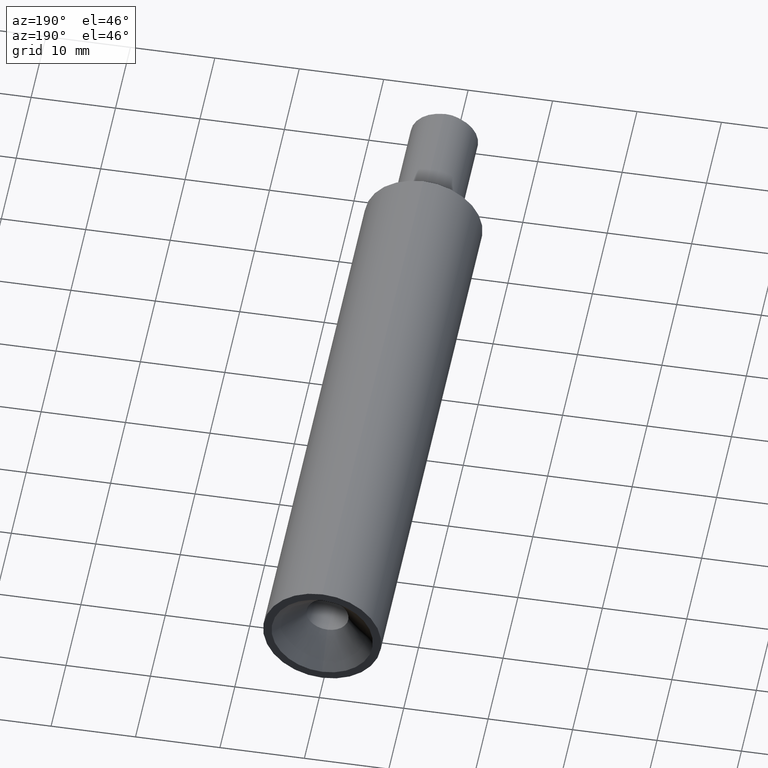
[diagram: clean part render]
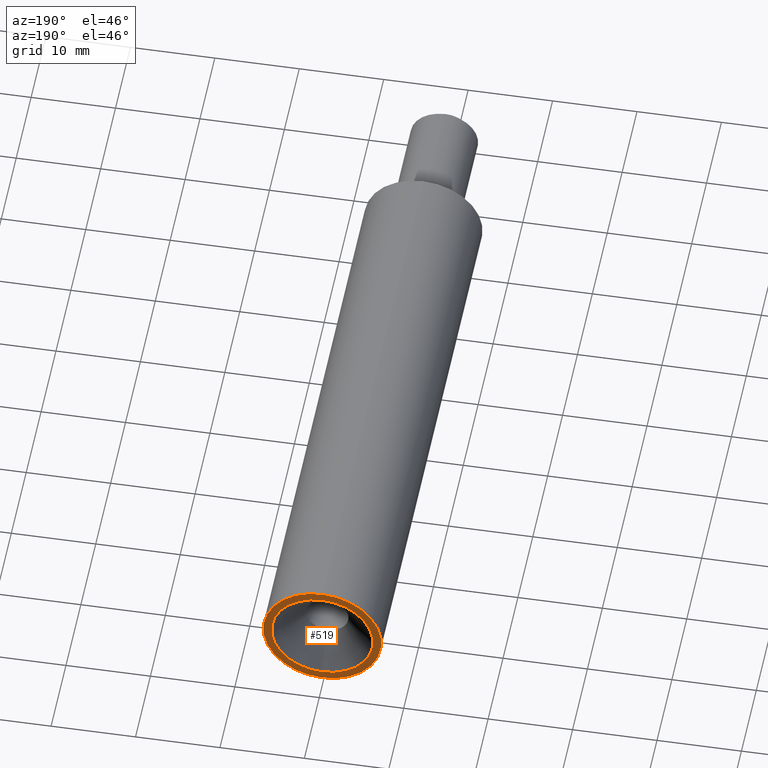
[diagram: same view with one face highlighted and labeled with its STEP entity id]
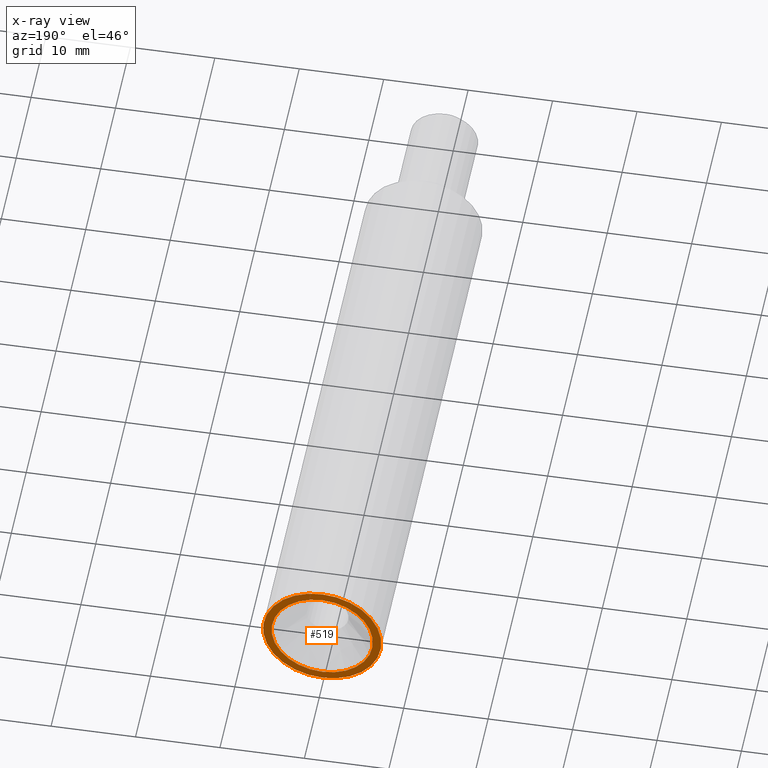
[diagram: x-ray of the same camera — body ghosted, the highlighted face saturated]
A machine part, auxiliary view. The second image highlights one B-rep face of the part: STEP entity #519.
The next image is the same camera in x-ray: the body ghosted, the highlighted face saturated — about 0% of this face is hidden behind the body in this view.
In plain terms, the highlighted planar face has unit normal (0, 1, 0).
Its self-contained STEP definition (entity closure, byte-faithful):
#1 = DIRECTION ( 'NONE',  ( -0.0000000000000000000, 1.000000000000000000, -0.0000000000000000000 ) ) ;
#5 = CIRCLE ( 'NONE', #180, 7.000000000000000000 ) ;
#38 = CIRCLE ( 'NONE', #540, 6.000000000000000000 ) ;
#50 = DIRECTION ( 'NONE',  ( 0.0000000000000000000, 1.000000000000000000, 0.0000000000000000000 ) ) ;
#67 = EDGE_LOOP ( 'NONE', ( #695, #600 ) ) ;
#77 = CARTESIAN_POINT ( 'NONE',  ( 0.0000000000000000000, 68.00000000000000000, 0.0000000000000000000 ) ) ;
#80 = CARTESIAN_POINT ( 'NONE',  ( 0.0000000000000000000, 68.00000000000000000, -7.000000000000000000 ) ) ;
#81 = ORIENTED_EDGE ( 'NONE', *, *, #651, .F. ) ;
#83 = CARTESIAN_POINT ( 'NONE',  ( 0.0000000000000000000, 68.00000000000000000, 0.0000000000000000000 ) ) ;
#85 = DIRECTION ( 'NONE',  ( -0.0000000000000000000, 1.000000000000000000, -0.0000000000000000000 ) ) ;
#94 = CARTESIAN_POINT ( 'NONE',  ( 7.347880794884119700E-016, 68.00000000000000000, -6.000000000000000000 ) ) ;
#123 = DIRECTION ( 'NONE',  ( -0.0000000000000000000, -1.000000000000000000, -0.0000000000000000000 ) ) ;
#134 = CARTESIAN_POINT ( 'NONE',  ( 8.572527594031473200E-016, 68.00000000000000000, 7.000000000000000000 ) ) ;
#180 = AXIS2_PLACEMENT_3D ( 'NONE', #77, #201, #260 ) ;
#201 = DIRECTION ( 'NONE',  ( -0.0000000000000000000, -1.000000000000000000, -0.0000000000000000000 ) ) ;
#225 = VERTEX_POINT ( 'NONE', #94 ) ;
#230 = FACE_OUTER_BOUND ( 'NONE', #67, .T. ) ;
#233 = VERTEX_POINT ( 'NONE', #80 ) ;
#242 = AXIS2_PLACEMENT_3D ( 'NONE', #398, #1, #653 ) ;
#243 = CARTESIAN_POINT ( 'NONE',  ( 0.0000000000000000000, 68.00000000000000000, 0.0000000000000000000 ) ) ;
#260 = DIRECTION ( 'NONE',  ( 0.0000000000000000000, 0.0000000000000000000, -1.000000000000000000 ) ) ;
#307 = FACE_BOUND ( 'NONE', #340, .T. ) ;
#321 = CARTESIAN_POINT ( 'NONE',  ( 0.0000000000000000000, 68.00000000000000000, 0.0000000000000000000 ) ) ;
#340 = EDGE_LOOP ( 'NONE', ( #81, #688 ) ) ;
#387 = AXIS2_PLACEMENT_3D ( 'NONE', #243, #50, #581 ) ;
#398 = CARTESIAN_POINT ( 'NONE',  ( 0.0000000000000000000, 68.00000000000000000, 0.0000000000000000000 ) ) ;
#491 = EDGE_CURVE ( 'NONE', #531, #233, #815, .T. ) ;
#511 = AXIS2_PLACEMENT_3D ( 'NONE', #321, #123, #574 ) ;
#519 = ADVANCED_FACE ( 'NONE', ( #307, #230 ), #521, .T. ) ;
#521 = PLANE ( 'NONE',  #387 ) ;
#531 = VERTEX_POINT ( 'NONE', #134 ) ;
#540 = AXIS2_PLACEMENT_3D ( 'NONE', #83, #85, #672 ) ;
#574 = DIRECTION ( 'NONE',  ( 0.0000000000000000000, 0.0000000000000000000, -1.000000000000000000 ) ) ;
#581 = DIRECTION ( 'NONE',  ( 0.0000000000000000000, -0.0000000000000000000, 1.000000000000000000 ) ) ;
#594 = CIRCLE ( 'NONE', #242, 6.000000000000000000 ) ;
#597 = EDGE_CURVE ( 'NONE', #233, #531, #5, .T. ) ;
#600 = ORIENTED_EDGE ( 'NONE', *, *, #491, .F. ) ;
#651 = EDGE_CURVE ( 'NONE', #669, #225, #594, .T. ) ;
#653 = DIRECTION ( 'NONE',  ( 0.0000000000000000000, 0.0000000000000000000, 1.000000000000000000 ) ) ;
#669 = VERTEX_POINT ( 'NONE', #709 ) ;
#672 = DIRECTION ( 'NONE',  ( 0.0000000000000000000, 0.0000000000000000000, 1.000000000000000000 ) ) ;
#688 = ORIENTED_EDGE ( 'NONE', *, *, #721, .F. ) ;
#695 = ORIENTED_EDGE ( 'NONE', *, *, #597, .F. ) ;
#709 = CARTESIAN_POINT ( 'NONE',  ( 0.0000000000000000000, 68.00000000000000000, 6.000000000000000000 ) ) ;
#721 = EDGE_CURVE ( 'NONE', #225, #669, #38, .T. ) ;
#815 = CIRCLE ( 'NONE', #511, 7.000000000000000000 ) ;